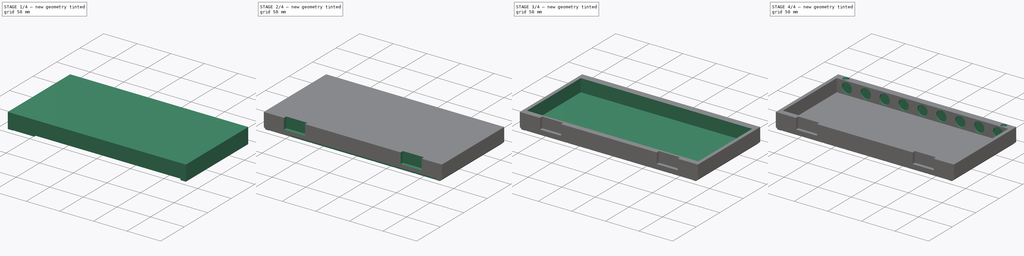
[diagram: build sequence overview — one tinted view per stage of 4, left to right]
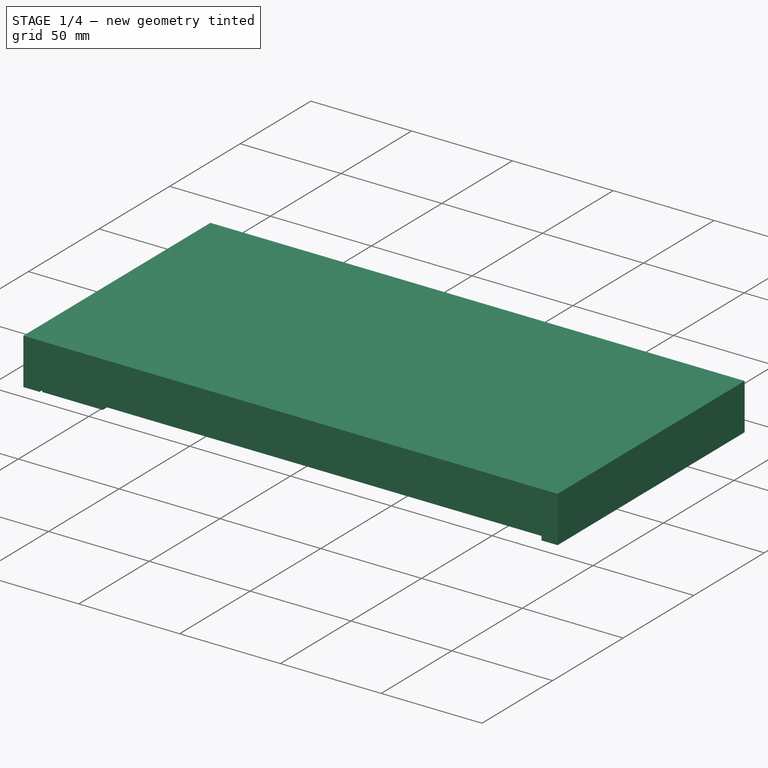
[diagram: stage 1 of 4 — iso view after this stage's code; geometry added in this stage tinted green]
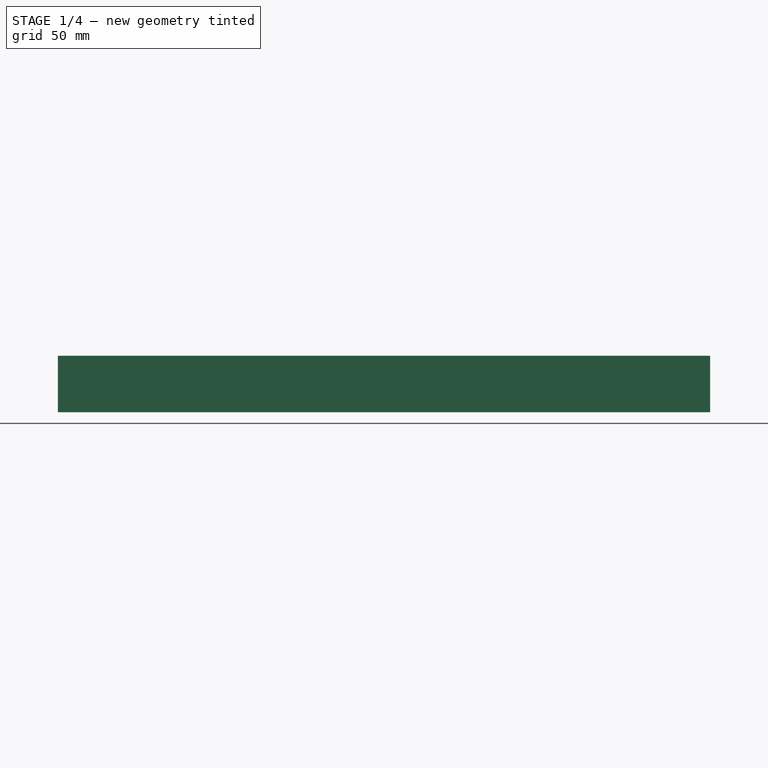
[diagram: stage 1 of 4 — front view after this stage's code; geometry added in this stage tinted green]
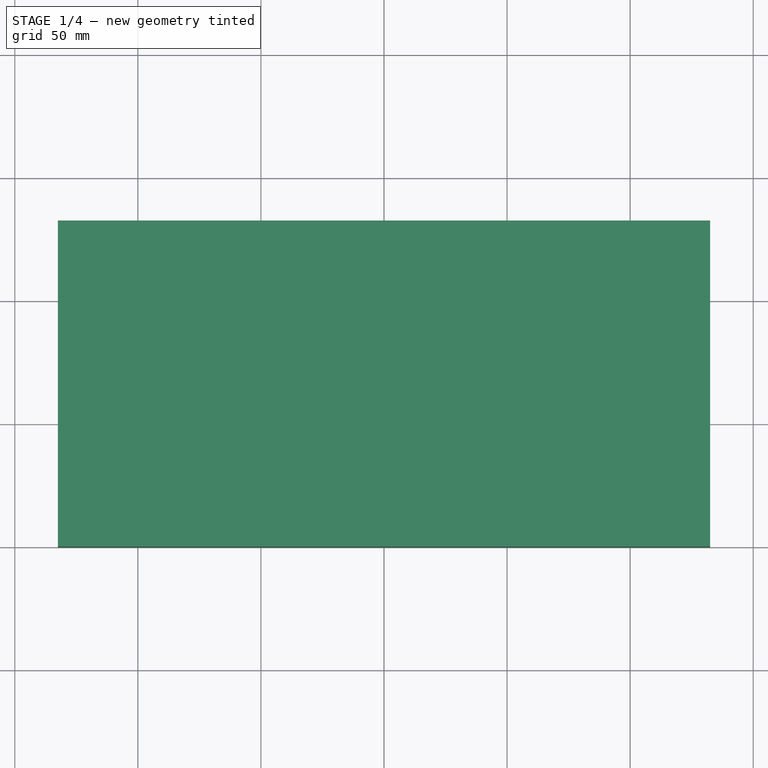
[diagram: stage 1 of 4 — top view after this stage's code; geometry added in this stage tinted green]
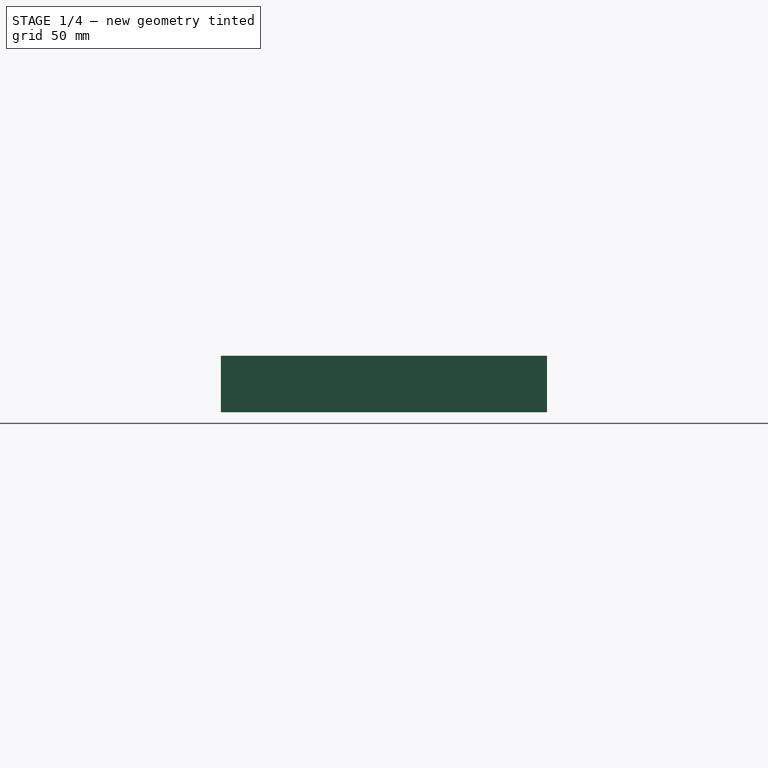
[diagram: stage 1 of 4 — right view after this stage's code; geometry added in this stage tinted green]
FCSTD DOCUMENT  (FreeCAD 0.21R33771 (Git))
Label: ChessBoard1
License: All rights reserved
LicenseURL: http://en.wikipedia.org/wiki/All_rights_reserved
objects: Sketcher::SketchObject×8, PartDesign::Pocket×6, PartDesign::LinearPattern×3, PartDesign::Pad×2, Spreadsheet::Sheet×1, PartDesign::Chamfer×1, PartDesign::Body×1, App::Part×1
note: 30 computed .brp shape members not serialized (recipe doc carries the construction recipe); baked Part::Feature solids carry a one-line shape summary decoded from their .brp

FEATURE [Spreadsheet::Sheet] Spreadsheet  label="p"
  cells = A1='chess_square; B1(chess_square)=30; A2='chess_square_thickness; B2(chess_square_thickness)=2; A3='chess_square_space; B3(chess_square_space)=1; A4='chess_square_backer; B4(chess_square_backer)=2; A6='hinge; B6(hinge)=31.32; A7='hinge_thickness; B7(hinge_thickness)=4.7; A9='board_edge; B9(board_edge)=8; A10='board_thickness; B10(board_thickness)==B19 + B21 * 2 + 4; C10='Calculated; A12='long_wall_outer_thickness; B12(long_wall_outer_thickness)=10; A13='long_wall_inner_thickness; B13(long_wall_inner_thickness)=6; A14='short_wall_thickness; B14(short_wall_thickness)=5; A16='edge_magnet_diameter; B16(edge_magnet_diameter)=8.05; A17='edge_magnet_thickness; B17(edge_magnet_thickness)=1.8; A19='piece_magnet_diameter; B19(piece_magnet_diameter)=15; A20='piece_magnet_thickness; B20(piece_magnet_thickness)=2; A21='piece_magnet_edge_clearance; B21(piece_magnet_edge_clearance)=2; A23='hinge_tolerance; B23(hinge_tolerance)=0.1; A24='magnet_tolerance; B24(magnet_tolerance)=0.2
FEATURE [Sketcher::SketchObject] Sketch
  FullyConstrained = true
  MapMode = 5
  Support = -> [XY_Plane001]
  expr: Constraints[11] = (<<p>>.chess_square * 8 + <<p>>.chess_square_space * 9 + <<p>>.board_edge * 2) / 2
  expr: Constraints[8] = <<p>>.chess_square * 8 + <<p>>.chess_square_space * 9 + <<p>>.board_edge * 2
  expr: Constraints[9] = <<p>>.chess_square * 4 + <<p>>.chess_square_space * 4 + <<p>>.chess_square_space / 2 + <<p>>.board_edge
  sketch-geometry (4):
    g0: LineSegment StartX=-132.5 StartY=132.5 StartZ=0 EndX=132.5 EndY=132.5 EndZ=0
    g1: LineSegment StartX=132.5 StartY=132.5 StartZ=0 EndX=132.5 EndY=0 EndZ=0
    g2: LineSegment StartX=132.5 StartY=0 StartZ=0 EndX=-132.5 EndY=0 EndZ=0
    g3: LineSegment StartX=-132.5 StartY=0 StartZ=0 EndX=-132.5 EndY=132.5 EndZ=0
  constraints (12):
    c: Coincident(g0,g1)
    c: Coincident(g1,g2)
    c: Coincident(g2,g3)
    c: Coincident(g3,g0)
    c: Horizontal(g0)
    c: Horizontal(g2)
    c: Vertical(g1)
    c: Vertical(g3)
    c: DistanceX(g0,g0) = 265
    c: DistanceY(g3,g3) = 132.5
    c: DistanceY(g-1,g2) = 0
    c: DistanceX(g0,g-1) = 132.5
FEATURE [PartDesign::Pad] Pad  label="BoardPad"
  Direction = (0,0,1)
  Length = 23
  Length2 = 10
  Profile = -> Sketch
  ReferenceAxis = -> Sketch [N_Axis]
  Type = 0
  expr: Length = <<p>>.board_thickness
FEATURE [Sketcher::SketchObject] Sketch001
  FullyConstrained = true
  MapMode = 5
  Placement = pos=(0,0,0) rot=(1,0,0;3.14159rad)
  Support = -> [Pad]
  expr: Constraints[10] = (<<p>>.chess_square * 8 + <<p>>.chess_square_space * 9) / 2
  expr: Constraints[11] = <<p>>.chess_square * 4 + <<p>>.chess_square_space * 4 + <<p>>.chess_square_space / 2
  expr: Constraints[9] = <<p>>.chess_square * 8 + <<p>>.chess_square_space * 9
  sketch-geometry (4):
    g0: LineSegment StartX=-124.5 StartY=0 StartZ=0 EndX=124.5 EndY=0 EndZ=0
    g1: LineSegment StartX=124.5 StartY=0 StartZ=0 EndX=124.5 EndY=-124.5 EndZ=0
    g2: LineSegment StartX=124.5 StartY=-124.5 StartZ=0 EndX=-124.5 EndY=-124.5 EndZ=0
    g3: LineSegment StartX=-124.5 StartY=-124.5 StartZ=0 EndX=-124.5 EndY=0 EndZ=0
  constraints (12):
    c: Coincident(g0,g1)
    c: Coincident(g1,g2)
    c: Coincident(g2,g3)
    c: Coincident(g3,g0)
    c: Horizontal(g0)
    c: Horizontal(g2)
    c: Vertical(g1)
    c: Vertical(g3)
    c: PointOnObject(g0,g-1)
    c: DistanceX(g0,g0) = 249
    c: DistanceX(g0,g-1) = 124.5
    c: DistanceY(g3,g3) = 124.5
FEATURE [PartDesign::Pocket] Pocket  label="ChessSquarePockt"
  BaseFeature = -> Pad
  Direction = (0,0,1)
  Length = 2
  Length2 = 5
  Profile = -> Sketch001
  ReferenceAxis = -> Sketch001 [N_Axis]
  Type = 0
  expr: Length = <<p>>.chess_square_thickness
FEATURE [Sketcher::SketchObject] Sketch002
  FullyConstrained = true
  MapMode = 5
  Placement = pos=(0,0,2) rot=(1,0,0;3.14159rad)
  Support = -> [Pocket]
  expr: Constraints[10] = -<<p>>.chess_square_space / 2
  expr: Constraints[11] = <<p>>.chess_square * 3 + <<p>>.chess_square_space * 4 - <<p>>.chess_square_space / 2
  expr: Constraints[36] = <<p>>.chess_square
  expr: Constraints[37] = <<p>>.chess_square
  expr: Constraints[38] = <<p>>.chess_square
  expr: Constraints[42] = <<p>>.chess_square
  expr: Constraints[43] = <<p>>.chess_square
  expr: Constraints[44] = <<p>>.chess_square
  expr: Constraints[45] = <<p>>.chess_square_space
  expr: Constraints[46] = <<p>>.chess_square_space
  expr: Constraints[47] = <<p>>.chess_square_space
  expr: Constraints[8] = <<p>>.chess_square
  expr: Constraints[9] = <<p>>.chess_square
  sketch-geometry (16):
    g0: LineSegment StartX=-123.5 StartY=-0.5 StartZ=0 EndX=-93.5 EndY=-0.5 EndZ=0
    g1: LineSegment StartX=-93.5 StartY=-0.5 StartZ=0 EndX=-93.5 EndY=-30.5 EndZ=0
    g2: LineSegment StartX=-93.5 StartY=-30.5 StartZ=0 EndX=-123.5 EndY=-30.5 EndZ=0
    g3: LineSegment StartX=-123.5 StartY=-30.5 StartZ=0 EndX=-123.5 EndY=-0.5 EndZ=0
    g4: LineSegment StartX=-123.5 StartY=-31.5 StartZ=0 EndX=-93.5 EndY=-31.5 EndZ=0
    g5: LineSegment StartX=-93.5 StartY=-31.5 StartZ=0 EndX=-93.5 EndY=-61.5 EndZ=0
    g6: LineSegment StartX=-93.5 StartY=-61.5 StartZ=0 EndX=-123.5 EndY=-61.5 EndZ=0
    g7: LineSegment StartX=-123.5 StartY=-61.5 StartZ=0 EndX=-123.5 EndY=-31.5 EndZ=0
    g8: LineSegment StartX=-123.5 StartY=-62.5 StartZ=0 EndX=-93.5 EndY=-62.5 EndZ=0
    g9: LineSegment StartX=-93.5 StartY=-62.5 StartZ=0 EndX=-93.5 EndY=-92.5 EndZ=0
    g10: LineSegment StartX=-93.5 StartY=-92.5 StartZ=0 EndX=-123.5 EndY=-92.5 EndZ=0
    g11: LineSegment StartX=-123.5 StartY=-92.5 StartZ=0 EndX=-123.5 EndY=-62.5 EndZ=0
    g12: LineSegment StartX=-123.5 StartY=-93.5 StartZ=0 EndX=-93.5 EndY=-93.5 EndZ=0
    g13: LineSegment StartX=-93.5 StartY=-93.5 StartZ=0 EndX=-93.5 EndY=-123.5 EndZ=0
    g14: LineSegment StartX=-93.5 StartY=-123.5 StartZ=0 EndX=-123.5 EndY=-123.5 EndZ=0
    g15: LineSegment StartX=-123.5 StartY=-123.5 StartZ=0 EndX=-123.5 EndY=-93.5 EndZ=0
  constraints (48):
    c: Coincident(g0,g1)
    c: Coincident(g1,g2)
    c: Coincident(g2,g3)
    c: Coincident(g3,g0)
    c: Horizontal(g0)
    c: Horizontal(g2)
    c: Vertical(g1)
    c: Vertical(g3)
    c: DistanceY(g3,g3) = 30
    c: DistanceX(g0,g0) = 30
    c: DistanceY(g-1,g0) = -0.5
    c: DistanceX(g0,g-1) = 93.5
    c: Coincident(g4,g5)
    c: Coincident(g5,g6)
    c: Coincident(g6,g7)
    c: Coincident(g7,g4)
    c: Horizontal(g4)
    c: Horizontal(g6)
    c: Vertical(g5)
    c: Vertical(g7)
    c: Coincident(g8,g9)
    c: Coincident(g9,g10)
    c: Coincident(g10,g11)
    c: Coincident(g11,g8)
    c: Horizontal(g8)
    c: Horizontal(g10)
    c: Vertical(g9)
    c: Vertical(g11)
    c: Coincident(g12,g13)
    c: Coincident(g13,g14)
    c: Coincident(g14,g15)
    c: Coincident(g15,g12)
    c: Horizontal(g12)
    c: Horizontal(g14)
    c: Vertical(g13)
    c: Vertical(g15)
    c: DistanceX(g4,g4) = 30
    c: DistanceX(g8,g8) = 30
    c: DistanceX(g12,g12) = 30
    c: DistanceX(g2,g4) = 0
    c: DistanceX(g6,g8) = 0
    c: DistanceX(g10,g12) = 0
    c: DistanceY(g7,g7) = 30
    c: DistanceY(g11,g11) = 30
    c: DistanceY(g15,g15) = 30
    c: DistanceY(g4,g1) = 1
    c: DistanceY(g8,g5) = 1
    c: DistanceY(g12,g9) = 1
FEATURE [PartDesign::Pad] Pad001  label="ChessSquarePads"
  BaseFeature = -> Pocket
  Direction = (0,0,-1)
  Length = 2
  Length2 = 10
  Profile = -> Sketch002
  ReferenceAxis = -> Sketch002 [N_Axis]
  Type = 0
  expr: Length = <<p>>.chess_square_thickness
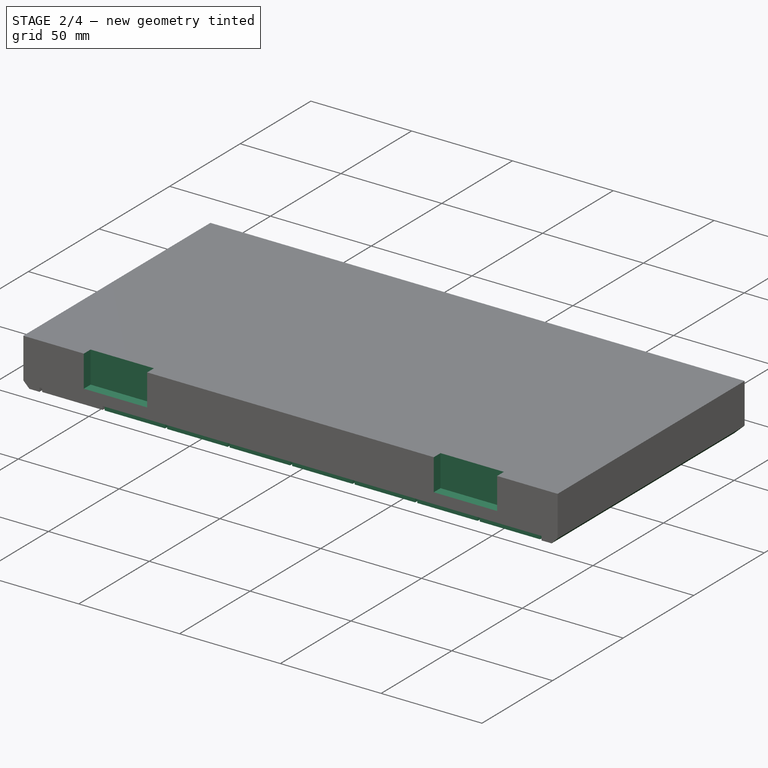
[diagram: stage 2 of 4 — iso view after this stage's code; geometry added in this stage tinted green]
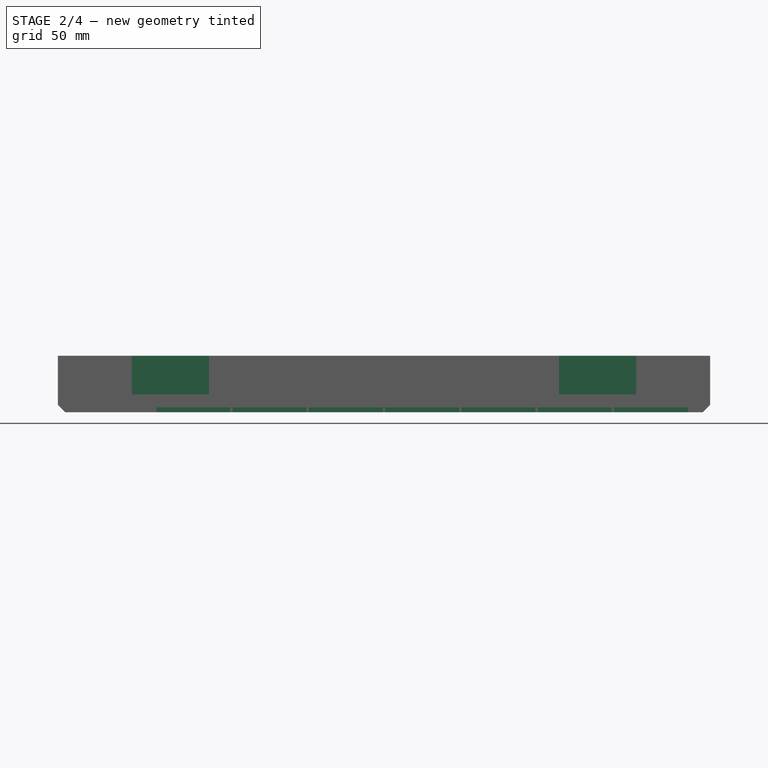
[diagram: stage 2 of 4 — front view after this stage's code; geometry added in this stage tinted green]
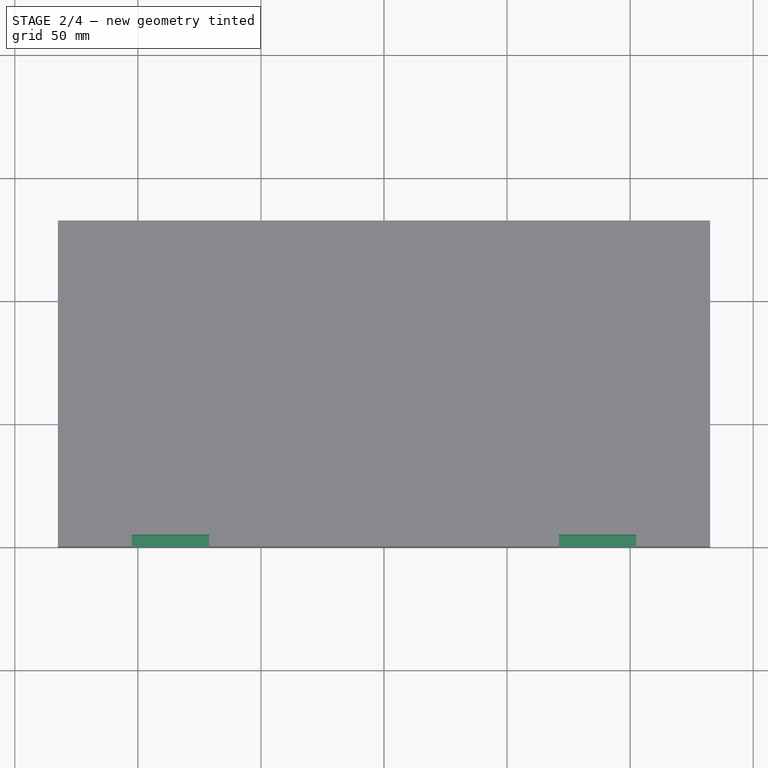
[diagram: stage 2 of 4 — top view after this stage's code; geometry added in this stage tinted green]
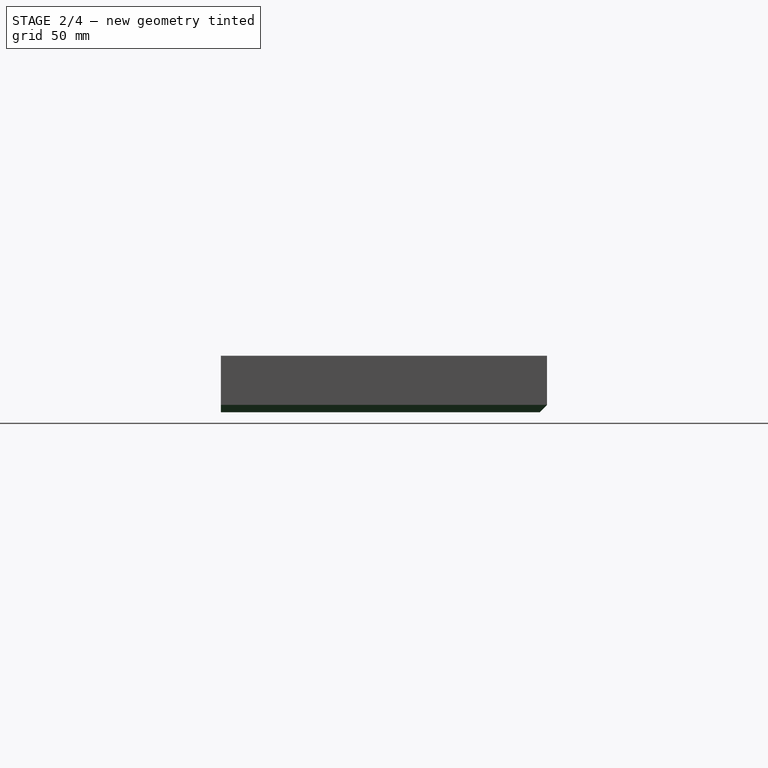
[diagram: stage 2 of 4 — right view after this stage's code; geometry added in this stage tinted green]
FEATURE [PartDesign::LinearPattern] LinearPattern  label="ChessSquareLinearPattern"
  BaseFeature = -> Pad001
  Direction = -> Sketch002 [H_Axis]
  Length = 217
  Occurrences = 8
  Originals = -> [Pad001]
  expr: Length = <<p>>.chess_square * 7 + <<p>>.chess_square_space * 7
FEATURE [PartDesign::Chamfer] Chamfer  label="TopEdgeChamfer"
  Angle = 45
  Base = -> LinearPattern [Edge6,Edge3,Edge9]
  BaseFeature = -> LinearPattern
  ChamferType = 0
  FlipDirection = false
  Size = 3
  Size2 = 1
  SupportTransform = false
  UseAllEdges = false
FEATURE [Sketcher::SketchObject] Sketch003
  FullyConstrained = true
  MapMode = 5
  Placement = pos=(0,0,0) rot=(1,0,0;1.5708rad)
  Support = -> [Chamfer]
  expr: Constraints[16] = <<p>>.hinge + <<p>>.hinge_tolerance
  expr: Constraints[17] = <<p>>.hinge + <<p>>.hinge_tolerance
  expr: Constraints[18] = <<p>>.hinge / 2 + <<p>>.hinge_tolerance / 2
  expr: Constraints[19] = <<p>>.hinge / 2 + <<p>>.hinge_tolerance / 2
  expr: Constraints[20] = <<p>>.board_thickness
  expr: Constraints[21] = <<p>>.board_thickness
  expr: Constraints[22] = (<<p>>.chess_square * 8 + <<p>>.chess_square_space * 9 + <<p>>.board_edge * 2) / 2 - 30
  expr: Constraints[23] = (<<p>>.chess_square * 8 + <<p>>.chess_square_space * 9 + <<p>>.board_edge * 2) / 2 - 30
  sketch-geometry (8):
    g0: LineSegment StartX=-102.5 StartY=23 StartZ=0 EndX=-71.08 EndY=23 EndZ=0
    g1: LineSegment StartX=-71.08 StartY=23 StartZ=0 EndX=-71.08 EndY=7.29 EndZ=0
    g2: LineSegment StartX=-71.08 StartY=7.29 StartZ=0 EndX=-102.5 EndY=7.29 EndZ=0
    g3: LineSegment StartX=-102.5 StartY=7.29 StartZ=0 EndX=-102.5 EndY=23 EndZ=0
    g4: LineSegment StartX=71.08 StartY=23 StartZ=0 EndX=102.5 EndY=23 EndZ=0
    g5: LineSegment StartX=102.5 StartY=23 StartZ=0 EndX=102.5 EndY=7.29 EndZ=0
    g6: LineSegment StartX=102.5 StartY=7.29 StartZ=0 EndX=71.08 EndY=7.29 EndZ=0
    g7: LineSegment StartX=71.08 StartY=7.29 StartZ=0 EndX=71.08 EndY=23 EndZ=0
  constraints (24):
    c: Coincident(g0,g1)
    c: Coincident(g1,g2)
    c: Coincident(g2,g3)
    c: Coincident(g3,g0)
    c: Horizontal(g0)
    c: Horizontal(g2)
    c: Vertical(g1)
    c: Vertical(g3)
    c: Coincident(g4,g5)
    c: Coincident(g5,g6)
    c: Coincident(g6,g7)
    c: Coincident(g7,g4)
    c: Horizontal(g4)
    c: Horizontal(g6)
    c: Vertical(g5)
    c: Vertical(g7)
    c: DistanceX(g0,g0) = 31.42
    c: DistanceX(g4,g4) = 31.42
    c: DistanceY(g3,g3) = 15.71
    c: DistanceY(g7,g7) = 15.71
    c: DistanceY(g-1,g0) = 23
    c: DistanceY(g-1,g4) = 23
    c: DistanceX(g0,g-1) = 102.5
    c: DistanceX(g-1,g4) = 102.5
FEATURE [PartDesign::Pocket] Pocket001  label="HingePockets"
  BaseFeature = -> Chamfer
  Direction = (0,1,-2e-16)
  Length = 4.8
  Length2 = 5
  Profile = -> Sketch003
  ReferenceAxis = -> Sketch003 [N_Axis]
  Type = 0
  expr: Length = <<p>>.hinge_thickness + <<p>>.hinge_tolerance
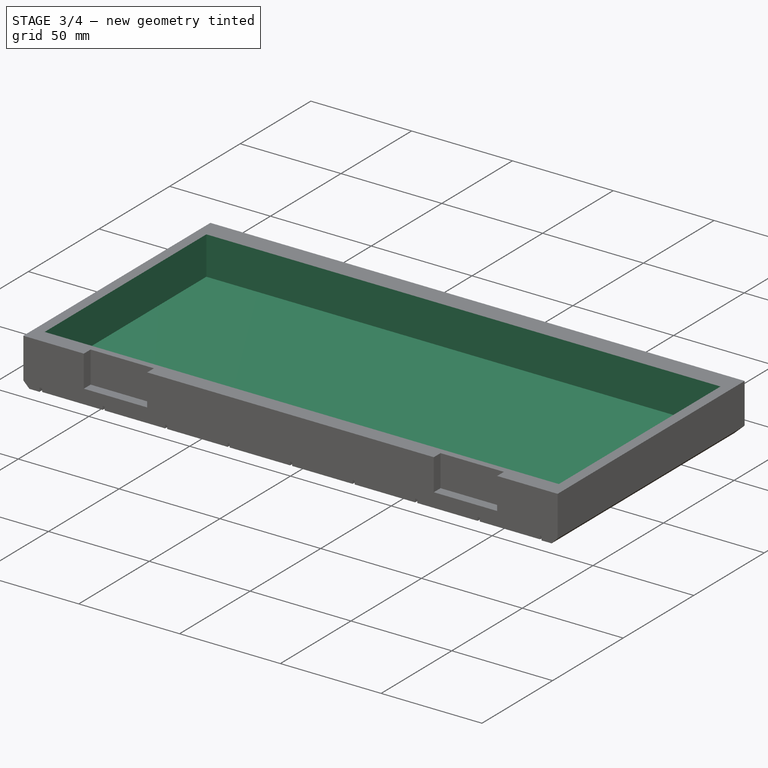
[diagram: stage 3 of 4 — iso view after this stage's code; geometry added in this stage tinted green]
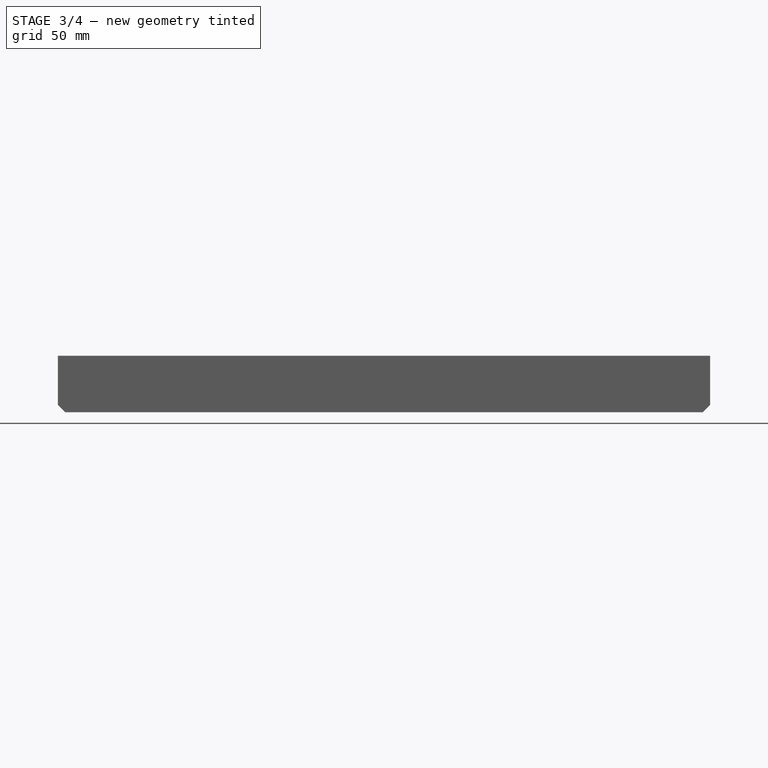
[diagram: stage 3 of 4 — front view after this stage's code; geometry added in this stage tinted green]
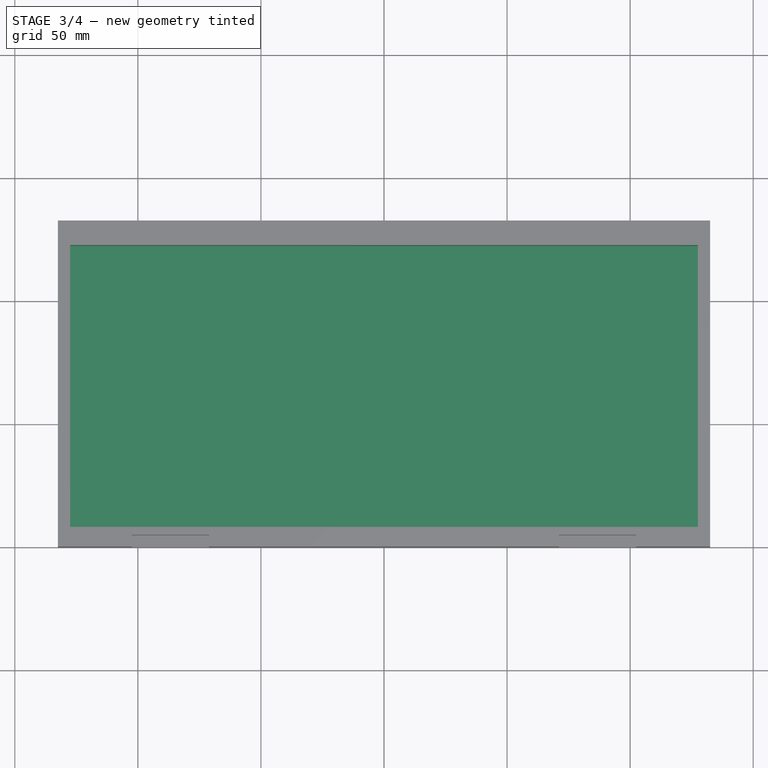
[diagram: stage 3 of 4 — top view after this stage's code; geometry added in this stage tinted green]
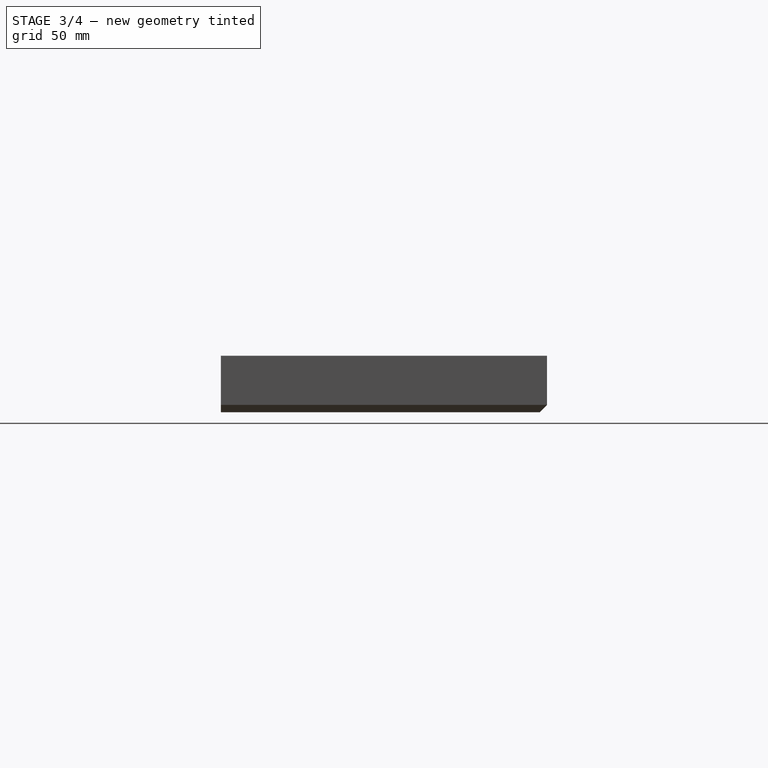
[diagram: stage 3 of 4 — right view after this stage's code; geometry added in this stage tinted green]
FEATURE [Sketcher::SketchObject] Sketch004
  FullyConstrained = true
  MapMode = 5
  Placement = pos=(0,0,23) rot=(0,0,1;0rad)
  Support = -> [Pocket001]
  expr: Constraints[10] = (<<p>>.chess_square * 8 + <<p>>.chess_square_space * 9 + <<p>>.board_edge * 2 - <<p>>.short_wall_thickness * 2) / 2
  expr: Constraints[11] = <<p>>.chess_square * 4 + <<p>>.chess_square_space * 4 + <<p>>.chess_square_space / 2 + <<p>>.board_edge - <<p>>.long_wall_outer_thickness
  expr: Constraints[8] = <<p>>.long_wall_inner_thickness + <<p>>.piece_magnet_thickness
  expr: Constraints[9] = <<p>>.chess_square * 8 + <<p>>.chess_square_space * 9 + <<p>>.board_edge * 2 - <<p>>.short_wall_thickness * 2
  sketch-geometry (4):
    g0: LineSegment StartX=-127.5 StartY=122.5 StartZ=0 EndX=127.5 EndY=122.5 EndZ=0
    g1: LineSegment StartX=127.5 StartY=122.5 StartZ=0 EndX=127.5 EndY=8 EndZ=0
    g2: LineSegment StartX=127.5 StartY=8 StartZ=0 EndX=-127.5 EndY=8 EndZ=0
    g3: LineSegment StartX=-127.5 StartY=8 StartZ=0 EndX=-127.5 EndY=122.5 EndZ=0
  constraints (12):
    c: Coincident(g0,g1)
    c: Coincident(g1,g2)
    c: Coincident(g2,g3)
    c: Coincident(g3,g0)
    c: Horizontal(g0)
    c: Horizontal(g2)
    c: Vertical(g1)
    c: Vertical(g3)
    c: DistanceY(g-1,g2) = 8
    c: DistanceX(g0,g0) = 255
    c: DistanceX(g0,g-1) = 127.5
    c: DistanceY(g-1,g0) = 122.5
FEATURE [PartDesign::Pocket] Pocket002  label="InnerPocket"
  BaseFeature = -> Pocket001
  Direction = (0,0,-1)
  Length = 19
  Length2 = 5
  Profile = -> Sketch004
  ReferenceAxis = -> Sketch004 [N_Axis]
  Type = 0
  expr: Length = <<p>>.board_thickness - <<p>>.chess_square_thickness - <<p>>.chess_square_backer
FEATURE [Sketcher::SketchObject] Sketch005
  FullyConstrained = true
  MapMode = 5
  Placement = pos=(0,8,0) rot=(0,0.707107,0.707107;3.14159rad)
  Support = -> [Pocket002]
  expr: Constraints[0] = <<p>>.piece_magnet_diameter + <<p>>.magnet_tolerance
  expr: Constraints[1] = <<p>>.board_thickness - <<p>>.piece_magnet_diameter / 2 - 2
  expr: Constraints[2] = (<<p>>.chess_square * 8 + <<p>>.chess_square_space * 9 + <<p>>.board_edge * 2 - <<p>>.short_wall_thickness * 2) / 2 - <<p>>.piece_magnet_diameter / 2 - <<p>>.piece_magnet_diameter / 2
  sketch-geometry (1):
    g0: Circle CenterX=-112.5 CenterY=13.5 CenterZ=0 NormalX=0 NormalY=0 NormalZ=1 AngleXU=0 Radius=7.6
  constraints (3):
    c: Diameter(g0) = 15.2
    c: DistanceY(g-1,g0) = 13.5
    c: DistanceX(g0,g-1) = 112.5
FEATURE [PartDesign::Pocket] Pocket003  label="PiecePocket1"
  BaseFeature = -> Pocket002
  Direction = (0,-1,2e-16)
  Length = 2
  Length2 = 5
  Profile = -> Sketch005
  ReferenceAxis = -> Sketch005 [N_Axis]
  Type = 0
  expr: Length = <<p>>.piece_magnet_thickness
FEATURE [PartDesign::LinearPattern] LinearPattern001  label="PiecePocket1LinerPattern"
  BaseFeature = -> Pocket003
  Direction = -> Sketch005 [H_Axis]
  Length = 225
  Occurrences = 8
  Originals = -> [Pocket003]
  expr: Length = <<p>>.chess_square * 8 + <<p>>.chess_square_space * 9 + <<p>>.board_edge * 2 - <<p>>.short_wall_thickness * 2 - <<p>>.piece_magnet_diameter - <<p>>.piece_magnet_diameter
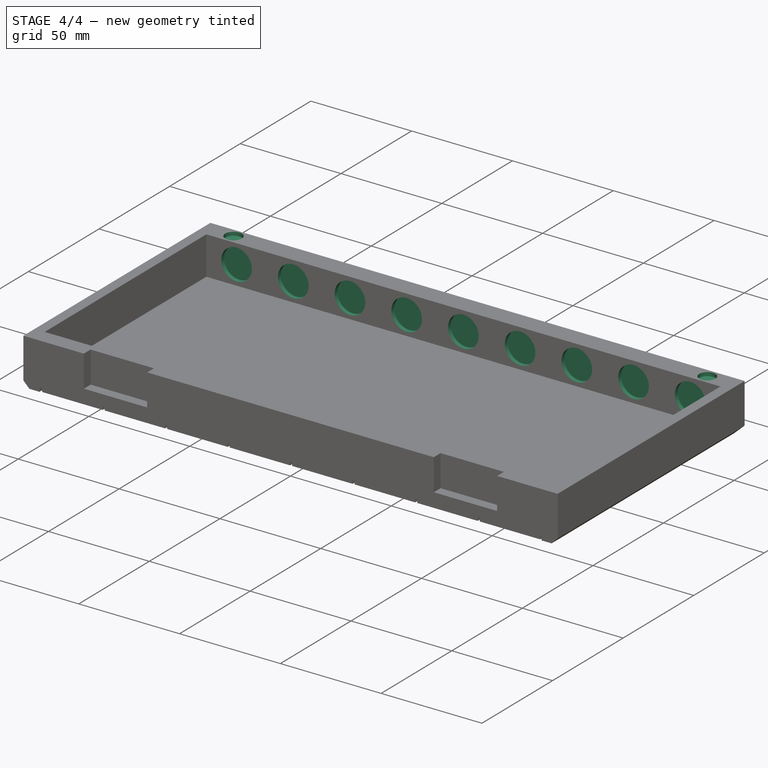
[diagram: stage 4 of 4 — iso view after this stage's code; geometry added in this stage tinted green]
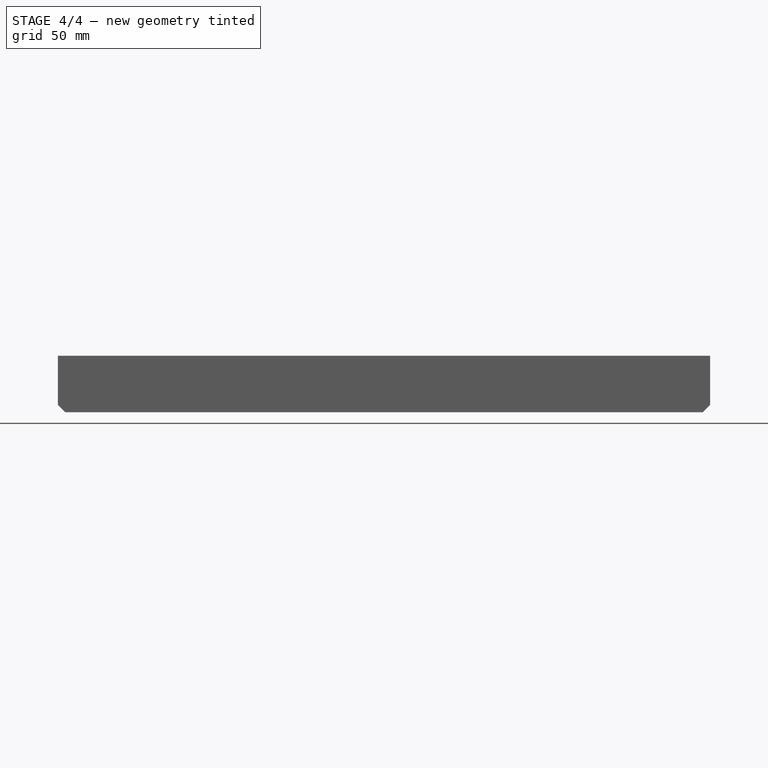
[diagram: stage 4 of 4 — front view after this stage's code; geometry added in this stage tinted green]
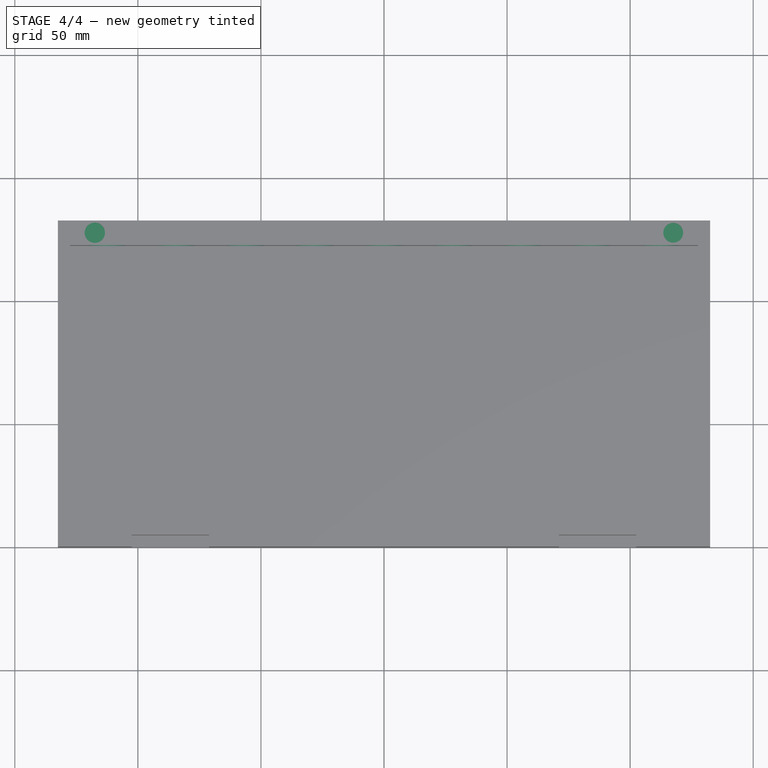
[diagram: stage 4 of 4 — top view after this stage's code; geometry added in this stage tinted green]
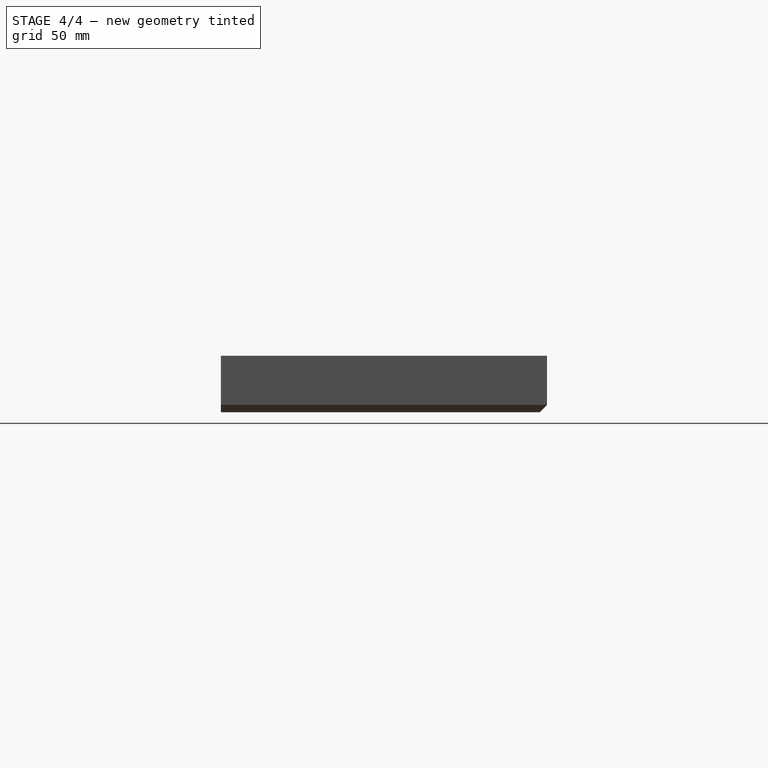
[diagram: stage 4 of 4 — right view after this stage's code; geometry added in this stage tinted green]
FEATURE [Sketcher::SketchObject] Sketch006
  FullyConstrained = true
  MapMode = 5
  Placement = pos=(0,122.5,0) rot=(1,0,0;1.5708rad)
  Support = -> [Pocket002]
  expr: Constraints[0] = <<p>>.piece_magnet_diameter + <<p>>.magnet_tolerance
  expr: Constraints[1] = <<p>>.board_thickness - <<p>>.piece_magnet_diameter / 2 - 2
  expr: Constraints[2] = (<<p>>.chess_square * 8 + <<p>>.chess_square_space * 9 + <<p>>.board_edge * 2 - <<p>>.short_wall_thickness * 2) / 2 - <<p>>.piece_magnet_diameter / 2 - <<p>>.piece_magnet_diameter / 2
  sketch-geometry (1):
    g0: Circle CenterX=-112.5 CenterY=13.5 CenterZ=0 NormalX=0 NormalY=0 NormalZ=1 AngleXU=0 Radius=7.6
  constraints (3):
    c: Diameter(g0) = 15.2
    c: DistanceY(g-1,g0) = 13.5
    c: DistanceX(g0,g-1) = 112.5
FEATURE [PartDesign::Pocket] Pocket004  label="PiecePocket2"
  BaseFeature = -> LinearPattern001
  Direction = (0,1,-2e-16)
  Length = 2
  Length2 = 5
  Profile = -> Sketch006
  ReferenceAxis = -> Sketch006 [N_Axis]
  Type = 0
  expr: Length = <<p>>.piece_magnet_thickness
FEATURE [PartDesign::LinearPattern] LinearPattern002  label="PiecePocket2LinearPattern"
  BaseFeature = -> Pocket004
  Direction = -> Sketch006 [H_Axis]
  Length = 225
  Occurrences = 9
  Originals = -> [Pocket004]
  expr: Length = <<p>>.chess_square * 8 + <<p>>.chess_square_space * 9 + <<p>>.board_edge * 2 - <<p>>.short_wall_thickness * 2 - <<p>>.piece_magnet_diameter - <<p>>.piece_magnet_diameter
FEATURE [Sketcher::SketchObject] Sketch007
  FullyConstrained = true
  MapMode = 5
  Placement = pos=(0,0,23) rot=(0,0,1;0rad)
  Support = -> [LinearPattern002]
  expr: Constraints[0] = <<p>>.edge_magnet_diameter + <<p>>.magnet_tolerance
  expr: Constraints[1] = <<p>>.chess_square * 4 + <<p>>.chess_square_space * 4 + <<p>>.chess_square_space / 2 + <<p>>.board_edge - <<p>>.edge_magnet_diameter / 2 - (<<p>>.long_wall_outer_thickness - <<p>>.edge_magnet_diameter) / 2
  expr: Constraints[2] = (<<p>>.chess_square * 8 + <<p>>.chess_square_space * 9 + <<p>>.board_edge * 2) / 2 - 15
  expr: Constraints[3] = <<p>>.edge_magnet_diameter
  expr: Constraints[4] = (<<p>>.chess_square * 8 + <<p>>.chess_square_space * 9 + <<p>>.board_edge * 2) / 2 - 15
  expr: Constraints[5] = <<p>>.chess_square * 4 + <<p>>.chess_square_space * 4 + <<p>>.chess_square_space / 2 + <<p>>.board_edge - <<p>>.edge_magnet_diameter / 2 - (<<p>>.long_wall_outer_thickness - <<p>>.edge_magnet_diameter) / 2
  sketch-geometry (2):
    g0: Circle CenterX=-117.5 CenterY=127.5 CenterZ=0 NormalX=0 NormalY=0 NormalZ=1 AngleXU=0 Radius=4.125
    g1: Circle CenterX=117.5 CenterY=127.5 CenterZ=0 NormalX=0 NormalY=0 NormalZ=1 AngleXU=0 Radius=4.025
  constraints (6):
    c: Diameter(g0) = 8.25
    c: DistanceY(g-1,g0) = 127.5
    c: DistanceX(g0,g-1) = 117.5
    c: Diameter(g1) = 8.05
    c: DistanceX(g-1,g1) = 117.5
    c: DistanceY(g-1,g1) = 127.5
FEATURE [PartDesign::Pocket] Pocket005  label="EdgeMagnetPocket"
  BaseFeature = -> LinearPattern002
  Direction = (0,0,-1)
  Length = 1.8
  Length2 = 5
  Profile = -> Sketch007
  ReferenceAxis = -> Sketch007 [N_Axis]
  Type = 0
  expr: Length = <<p>>.edge_magnet_thickness
FEATURE [PartDesign::Body] Body  label="ChessBoardBody"
  Group = -> [Sketch,Pad,Sketch001,Pocket,Sketch002,Pad001,LinearPattern,Chamfer,Sketch003,Pocket001,Sketch004,Pocket002,Sketch005,Pocket003,LinearPattern001,Sketch006,Pocket004,LinearPattern002,Sketch007,Pocket005]
  Origin = -> Origin001
  Tip = -> Pocket005
FEATURE [App::Part] Part  label="ChessBoardPart"
  Group = -> [Body]
  Origin = -> Origin
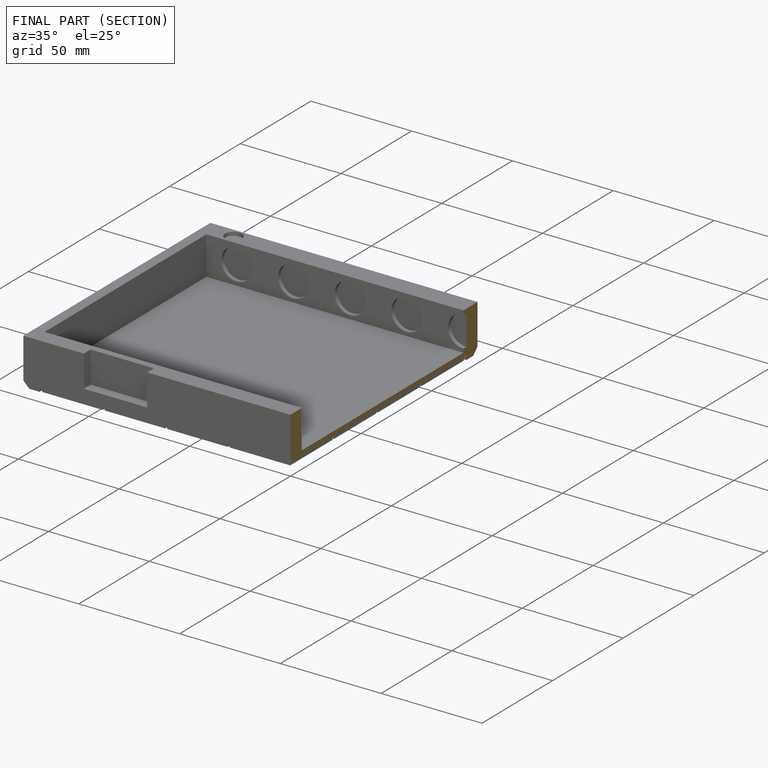
[diagram: finished part — half-section view (interior)]
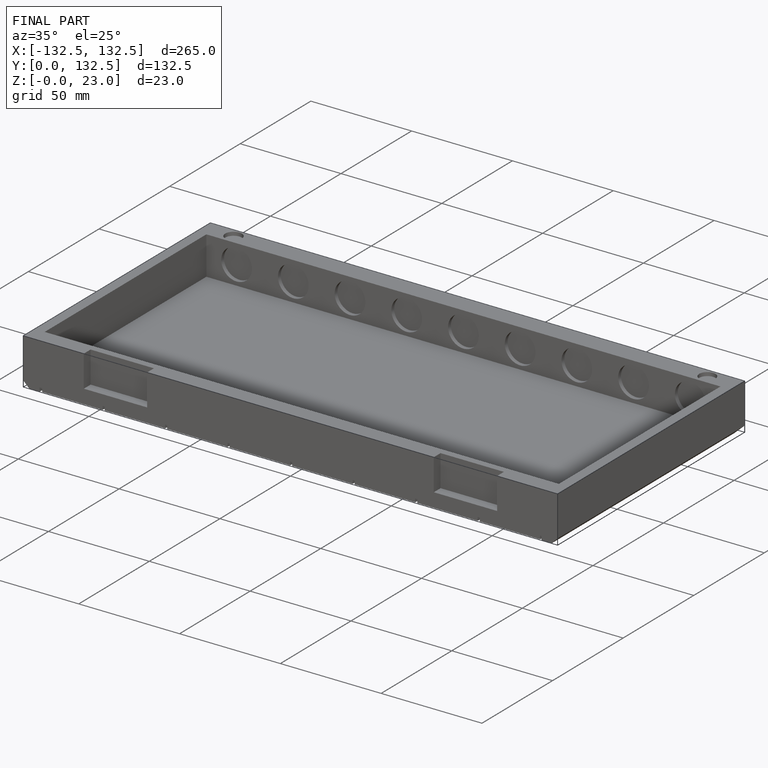
[diagram: finished part — iso view with bounding-box wireframe]
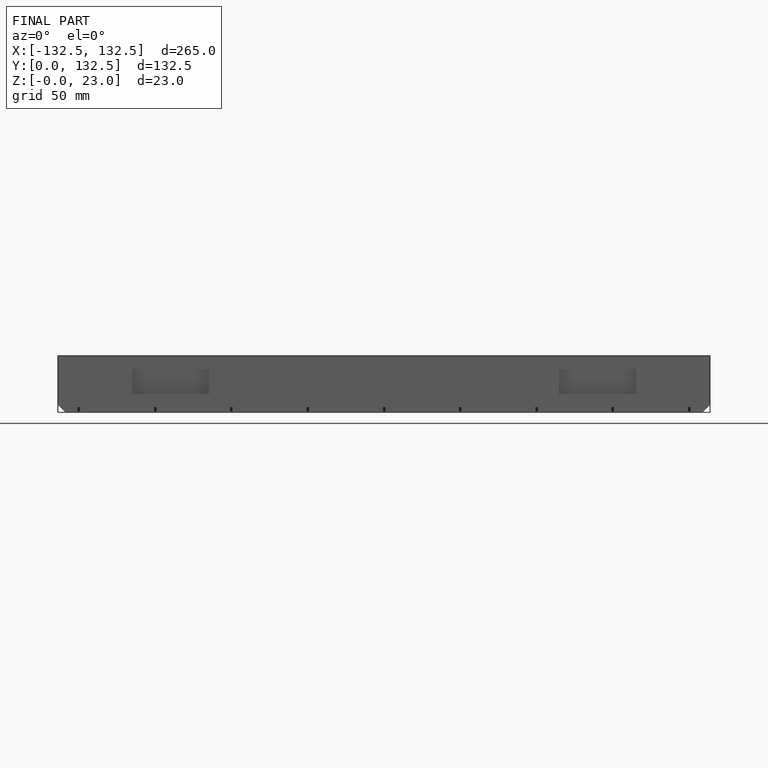
[diagram: finished part — front view with bounding-box wireframe]
